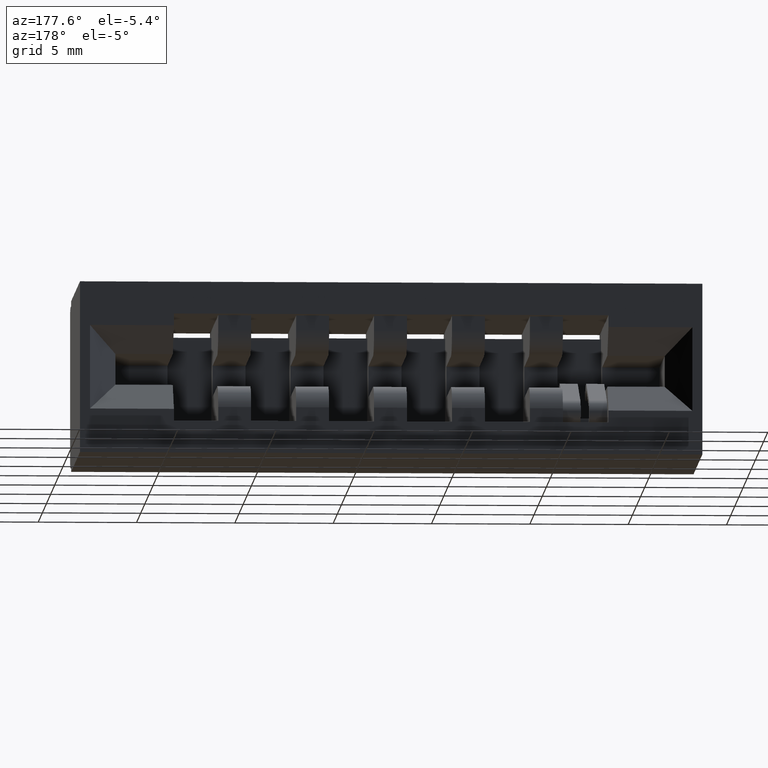
[diagram: clean part render]
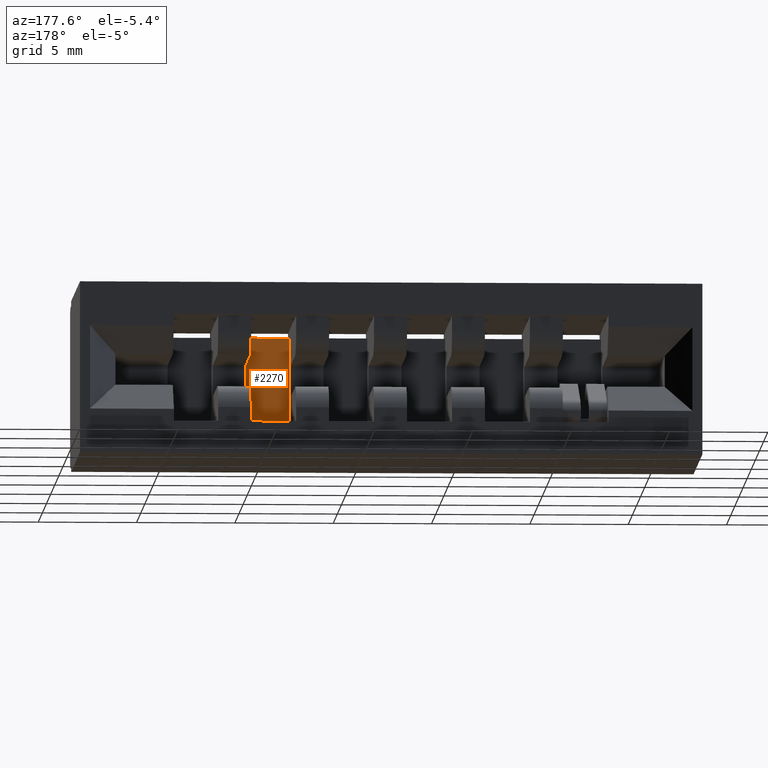
[diagram: same view with one face highlighted and labeled with its STEP entity id]
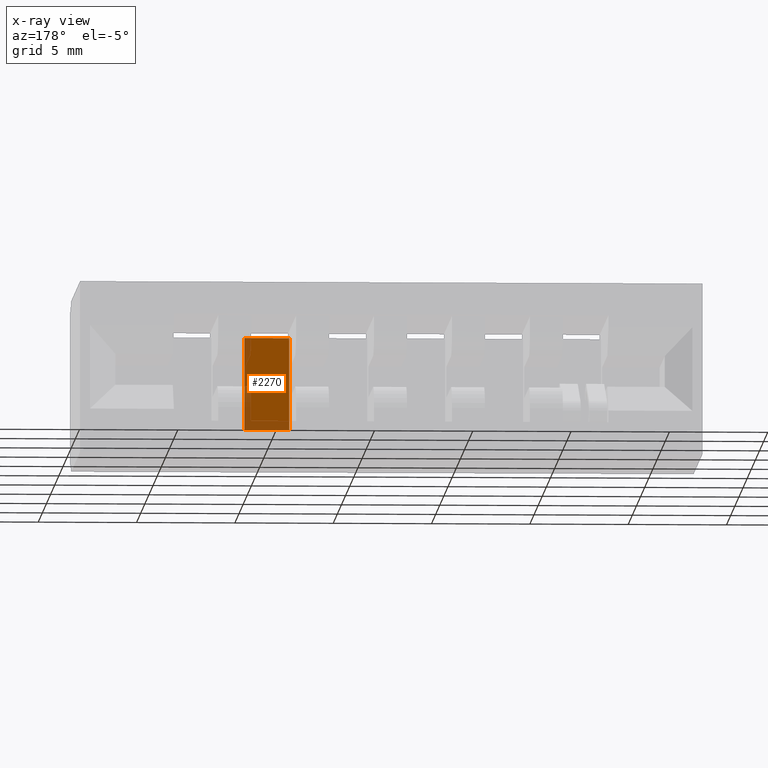
[diagram: x-ray of the same camera — body ghosted, the highlighted face saturated]
A machine part, auxiliary view. The second image highlights one B-rep face of the part: STEP entity #2270.
The next image is the same camera in x-ray: the body ghosted, the highlighted face saturated — about 19% of this face is hidden behind the body in this view.
In plain terms, the highlighted planar face has unit normal (0, 1, 0).
Its self-contained STEP definition (entity closure, byte-faithful):
#158 = VERTEX_POINT ( 'NONE', #1192 ) ;
#559 = VERTEX_POINT ( 'NONE', #6340 ) ;
#609 = CARTESIAN_POINT ( 'NONE',  ( 1.200000000000000400, 0.1160000000000000100, -0.06400000000000004300 ) ) ;
#694 = DIRECTION ( 'NONE',  ( 0.0000000000000000000, 0.0000000000000000000, -1.000000000000000000 ) ) ;
#1007 = EDGE_CURVE ( 'NONE', #158, #4509, #8064, .T. ) ;
#1024 = EDGE_CURVE ( 'NONE', #559, #3063, #9047, .T. ) ;
#1192 = CARTESIAN_POINT ( 'NONE',  ( 1.200000000000000400, 0.1160000000000000100, -0.07900000000000009800 ) ) ;
#1435 = CARTESIAN_POINT ( 'NONE',  ( 1.200000000000000400, 0.1160000000000000100, -0.2640000000000000100 ) ) ;
#1720 = CARTESIAN_POINT ( 'NONE',  ( 1.110000000000000500, 0.1160000000000000100, -0.07900000000000014000 ) ) ;
#2085 = LINE ( 'NONE', #609, #7368 ) ;
#2270 = ADVANCED_FACE ( 'NONE', ( #4750 ), #7431, .T. ) ;
#2362 = CARTESIAN_POINT ( 'NONE',  ( 1.110000000000000500, 0.1160000000000000100, -0.06400000000000001500 ) ) ;
#2388 = EDGE_CURVE ( 'NONE', #158, #3063, #2085, .T. ) ;
#3063 = VERTEX_POINT ( 'NONE', #1435 ) ;
#4340 = AXIS2_PLACEMENT_3D ( 'NONE', #7517, #7643, #5555 ) ;
#4401 = ORIENTED_EDGE ( 'NONE', *, *, #7025, .T. ) ;
#4509 = VERTEX_POINT ( 'NONE', #1720 ) ;
#4750 = FACE_OUTER_BOUND ( 'NONE', #4978, .T. ) ;
#4783 = ORIENTED_EDGE ( 'NONE', *, *, #2388, .T. ) ;
#4978 = EDGE_LOOP ( 'NONE', ( #5778, #4783, #5164, #4401 ) ) ;
#5164 = ORIENTED_EDGE ( 'NONE', *, *, #1024, .F. ) ;
#5555 = DIRECTION ( 'NONE',  ( 0.0000000000000000000, -0.0000000000000000000, 1.000000000000000000 ) ) ;
#5778 = ORIENTED_EDGE ( 'NONE', *, *, #1007, .F. ) ;
#6163 = DIRECTION ( 'NONE',  ( 1.000000000000000000, 0.0000000000000000000, -3.794233324533698900E-016 ) ) ;
#6340 = CARTESIAN_POINT ( 'NONE',  ( 1.110000000000000500, 0.1160000000000000100, -0.2640000000000000100 ) ) ;
#7025 = EDGE_CURVE ( 'NONE', #559, #4509, #7970, .T. ) ;
#7135 = DIRECTION ( 'NONE',  ( -0.0000000000000000000, -0.0000000000000000000, 1.000000000000000000 ) ) ;
#7146 = DIRECTION ( 'NONE',  ( -1.000000000000000000, -0.0000000000000000000, -3.794233324533698900E-016 ) ) ;
#7157 = CARTESIAN_POINT ( 'NONE',  ( 1.110000000000000500, 0.1160000000000000100, -0.2640000000000000100 ) ) ;
#7175 = CARTESIAN_POINT ( 'NONE',  ( 1.110000000000000500, 0.1160000000000000100, -0.07900000000000014000 ) ) ;
#7368 = VECTOR ( 'NONE', #694, 39.37007874015748100 ) ;
#7431 = PLANE ( 'NONE',  #4340 ) ;
#7517 = CARTESIAN_POINT ( 'NONE',  ( 1.110000000000000500, 0.1160000000000000100, -0.2790000000000000300 ) ) ;
#7643 = DIRECTION ( 'NONE',  ( 0.0000000000000000000, 1.000000000000000000, 0.0000000000000000000 ) ) ;
#7875 = VECTOR ( 'NONE', #7146, 39.37007874015748100 ) ;
#7944 = VECTOR ( 'NONE', #7135, 39.37007874015748100 ) ;
#7970 = LINE ( 'NONE', #2362, #7944 ) ;
#7974 = VECTOR ( 'NONE', #6163, 39.37007874015748100 ) ;
#8064 = LINE ( 'NONE', #7175, #7875 ) ;
#9047 = LINE ( 'NONE', #7157, #7974 ) ;